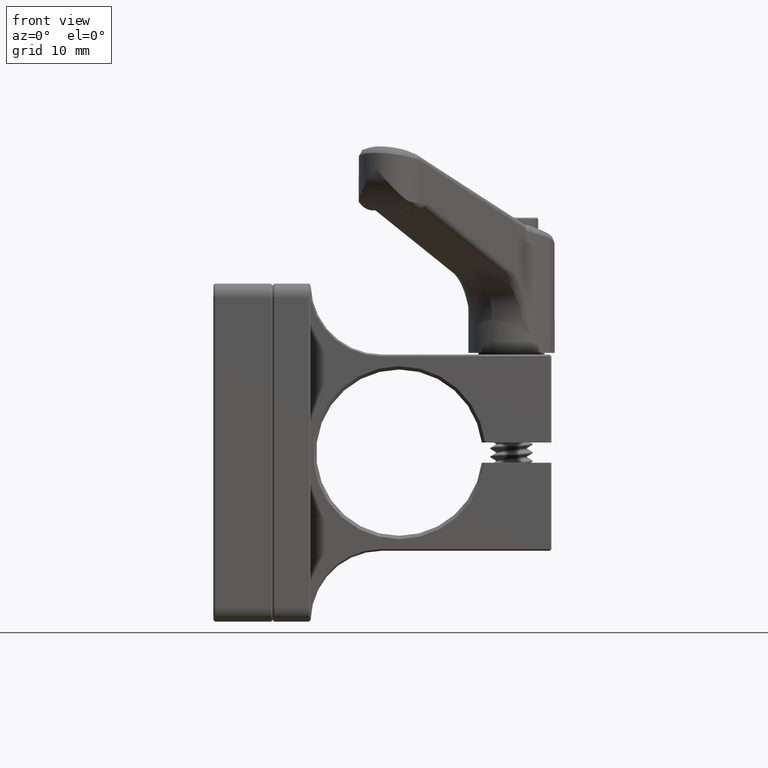
[diagram: clean part render]
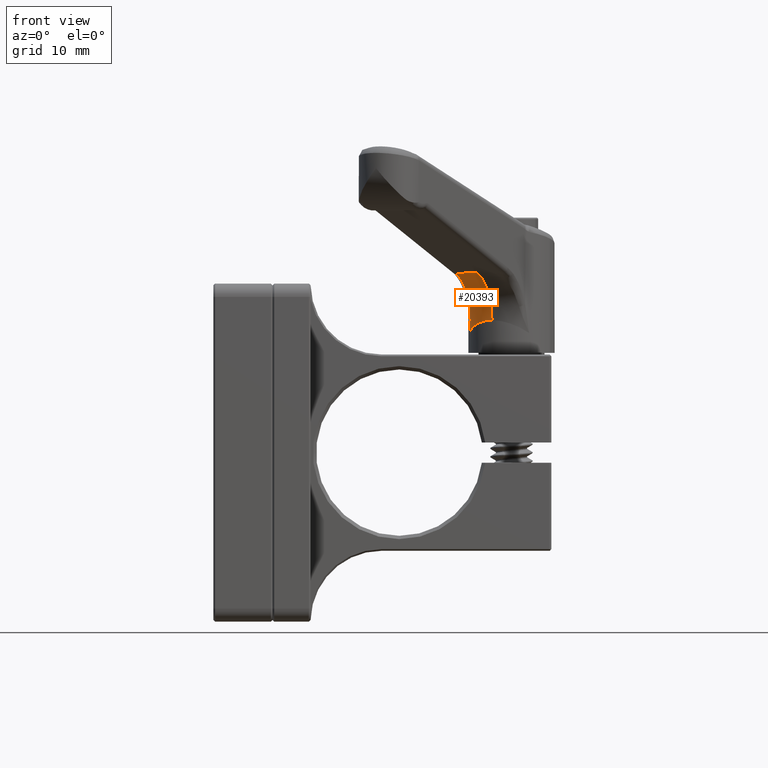
[diagram: same view with one face highlighted and labeled with its STEP entity id]
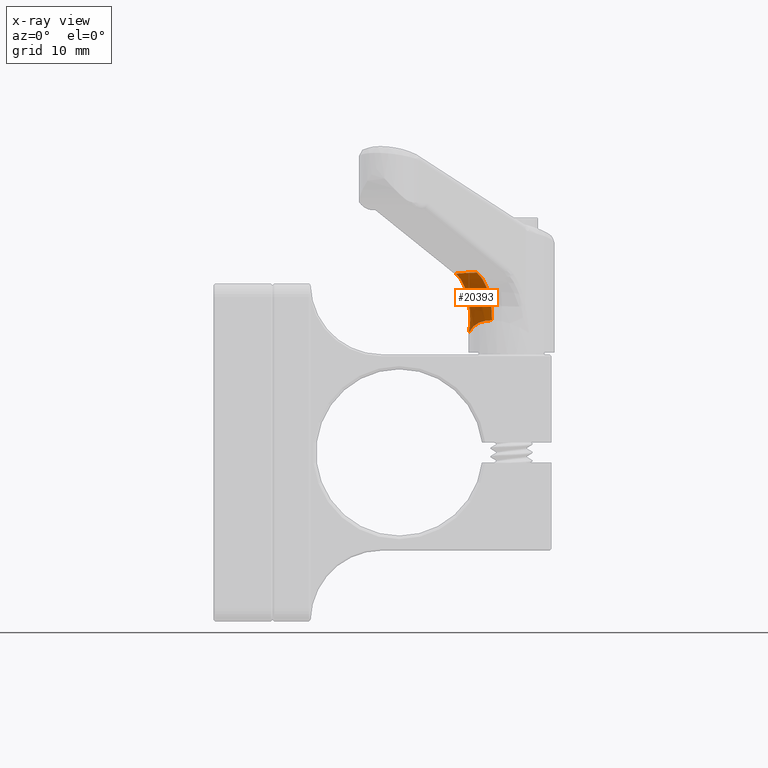
[diagram: x-ray of the same camera — body ghosted, the highlighted face saturated]
A machine part, front view. The second image highlights one B-rep face of the part: STEP entity #20393.
The next image is the same camera in x-ray: the body ghosted, the highlighted face saturated — about 0% of this face is hidden behind the body in this view.
In plain terms, the highlighted face is a freeform B-spline surface patch.
Its self-contained STEP definition (entity closure, byte-faithful):
#89 = CARTESIAN_POINT ( 'NONE',  ( 4.298144613204116560, -4.854698607468743710, 10.68286075880720531 ) ) ;
#1149 = CARTESIAN_POINT ( 'NONE',  ( 7.004447458432853324, -10.36694390747988770, 17.45572516152834552 ) ) ;
#1253 = CARTESIAN_POINT ( 'NONE',  ( 5.788525028637442560, -3.056373909444008774, 17.01316558990497896 ) ) ;
#1260 = CARTESIAN_POINT ( 'NONE',  ( 14.09698990032059029, -1.244997936205314474E-15, 11.92817561723325959 ) ) ;
#1394 = B_SPLINE_CURVE_WITH_KNOTS ( 'NONE', 3,
 ( #14990, #16520, #1616, #9548, #89, #6269 ),
 .UNSPECIFIED., .F., .F.,
 ( 4, 2, 4 ),
 ( 0.000000000000000000, 0.002193701320113213438, 0.004387402640226426877 ),
 .UNSPECIFIED. ) ;
#1473 = CARTESIAN_POINT ( 'NONE',  ( 6.206603743541818652, -1.914286068074581904, 11.71397583034823242 ) ) ;
#1488 = EDGE_CURVE ( 'NONE', #13584, #14622, #13413, .T. ) ;
#1616 = CARTESIAN_POINT ( 'NONE',  ( 5.083312465684488579, -4.367952821749421233, 12.67775128575780030 ) ) ;
#1840 = CARTESIAN_POINT ( 'NONE',  ( 7.426459771875473237, -3.956052960930946494, 16.53479511854423833 ) ) ;
#1916 = CARTESIAN_POINT ( 'NONE',  ( 11.49079986247256180, -1.014828145248320499E-15, 19.08862389702758122 ) ) ;
#2664 = CARTESIAN_POINT ( 'NONE',  ( 6.477000000000002977, -5.720264886206975028E-16, 11.92817561723325959 ) ) ;
#2976 = CARTESIAN_POINT ( 'NONE',  ( 10.90229078475497637, -4.166384339658841363, 18.87442411014290400 ) ) ;
#3013 = CARTESIAN_POINT ( 'NONE',  ( 6.305448146980277002, -4.085145671028524994, 15.06850985374742358 ) ) ;
#3087 = CARTESIAN_POINT ( 'NONE',  ( 2.722826267031603464, -6.112302168048227458, 15.89734249345473671 ) ) ;
#3095 = CARTESIAN_POINT ( 'NONE',  ( 11.49079986247256002, -1.267848442887159255, 19.08862389702758122 ) ) ;
#3127 = VERTEX_POINT ( 'NONE', #20230 ) ;
#3200 = CARTESIAN_POINT ( 'NONE',  ( 4.036670436264945927, -5.065256241196942177, 9.995019887464167141 ) ) ;
#3289 = CARTESIAN_POINT ( 'NONE',  ( 11.49079986247256180, -1.014828145248320499E-15, 19.08862389702758122 ) ) ;
#3308 = CARTESIAN_POINT ( 'NONE',  ( 11.37190879933176291, -2.109636342698538503, 19.04535108892405759 ) ) ;
#3578 = ORIENTED_EDGE ( 'NONE', *, *, #13543, .T. ) ;
#3932 = ORIENTED_EDGE ( 'NONE', *, *, #16376, .T. ) ;
#4025 = CARTESIAN_POINT ( 'NONE',  ( 10.98383799743360534, -3.746500000000000163, 18.90410486824530523 ) ) ;
#4255 = EDGE_LOOP ( 'NONE', ( #8099, #3578, #10616, #3932, #10260 ) ) ;
#4496 = CARTESIAN_POINT ( 'NONE',  ( 7.755216011648375485, -9.616604248795525223, 17.72898256772192482 ) ) ;
#4609 = CARTESIAN_POINT ( 'NONE',  ( 3.797705489222217068, -5.470472089237685687, 16.28856653576302094 ) ) ;
#4712 = CARTESIAN_POINT ( 'NONE',  ( 4.415712219089121149, -4.763185292368903312, 10.29528539470757842 ) ) ;
#4825 = CARTESIAN_POINT ( 'NONE',  ( 5.365194271265947279, -3.660752874937621026, 11.04743653722037777 ) ) ;
#4862 = CARTESIAN_POINT ( 'NONE',  ( 5.697487802157477965, -4.180892984858724404, 13.99274371865273636 ) ) ;
#4936 = CARTESIAN_POINT ( 'NONE',  ( 11.49079986247256358, -1.014828145248320696E-15, 19.08862389702758477 ) ) ;
#6269 = CARTESIAN_POINT ( 'NONE',  ( 4.063739079108937169, -5.043565573770491639, 10.01646285270483183 ) ) ;
#6353 = CARTESIAN_POINT ( 'NONE',  ( 6.477000000000003865, -0.4846661515269006237, 11.92817561723143172 ) ) ;
#6491 = CARTESIAN_POINT ( 'NONE',  ( 9.849448626886720959, -3.793493735210977658, 18.41897639542090204 ) ) ;
#8061 = CIRCLE ( 'NONE', #18851, 7.619989900320586429 ) ;
#8099 = ORIENTED_EDGE ( 'NONE', *, *, #1488, .F. ) ;
#8196 = CARTESIAN_POINT ( 'NONE',  ( 6.422374337258572652, -0.9692930681142238880, 11.88490280913009123 ) ) ;
#8234 = CARTESIAN_POINT ( 'NONE',  ( 9.070854343592342772, -3.836322508973101453, 17.92960230163784985 ) ) ;
#9522 = CARTESIAN_POINT ( 'NONE',  ( 6.477000000000003865, -5.720264886206975028E-16, 11.92817561723326136 ) ) ;
#9548 = CARTESIAN_POINT ( 'NONE',  ( 4.546301723004236628, -4.675186785282865465, 11.34939325492234552 ) ) ;
#9738 = CARTESIAN_POINT ( 'NONE',  ( 9.635913502239757733, -7.068855177056797778, 18.41350047395639322 ) ) ;
#9955 = CARTESIAN_POINT ( 'NONE',  ( 5.128254333668395226, -4.128697149169791025, 16.77284671038028208 ) ) ;
#10260 = ORIENTED_EDGE ( 'NONE', *, *, #19987, .T. ) ;
#10616 = ORIENTED_EDGE ( 'NONE', *, *, #13692, .F. ) ;
#11356 = FACE_OUTER_BOUND ( 'NONE', #4255, .T. ) ;
#11358 = CARTESIAN_POINT ( 'NONE',  ( 4.063739079108937169, -5.043565573770491639, 10.01646285270483183 ) ) ;
#11392 = CARTESIAN_POINT ( 'NONE',  ( 5.616385083518223631, -3.792556113924522965, 11.24642234847594047 ) ) ;
#11586 = CARTESIAN_POINT ( 'NONE',  ( 11.49079986246940344, -1.054860868164406273, 19.08862389702643014 ) ) ;
#11748 =( BOUNDED_CURVE ( )  B_SPLINE_CURVE ( 3, ( #16495, #19631, #3095, #1916 ),
 .UNSPECIFIED., .F., .T. ) 
 B_SPLINE_CURVE_WITH_KNOTS ( ( 4, 4 ),
 ( 6.014186942402299785, 6.283185307179586232 ),
 .UNSPECIFIED. ) 
 CURVE ( )  GEOMETRIC_REPRESENTATION_ITEM ( )  RATIONAL_B_SPLINE_CURVE ( ( 1.000000000000000000, 0.9939790747544796634, 0.9939790747544796634, 1.000000000000000000 ) ) 
 REPRESENTATION_ITEM ( '' )  );
#12886 = CARTESIAN_POINT ( 'NONE',  ( 6.045467922179074804, -2.374602868203998352, 11.58632887603365980 ) ) ;
#13147 = CARTESIAN_POINT ( 'NONE',  ( 8.819133323913565192, -3.851534095684130854, 17.75290826535510647 ) ) ;
#13413 =( BOUNDED_CURVE ( )  B_SPLINE_CURVE ( 3, ( #16294, #19881, #11392, #19658 ),
 .UNSPECIFIED., .F., .T. ) 
 B_SPLINE_CURVE_WITH_KNOTS ( ( 4, 4 ),
 ( 0.000000000000000000, 0.8925727990785855548 ),
 .UNSPECIFIED. ) 
 CURVE ( )  GEOMETRIC_REPRESENTATION_ITEM ( )  RATIONAL_B_SPLINE_CURVE ( ( 1.000000000000000000, 0.9347041185995071944, 0.9347041185995071944, 1.000000000000000000 ) ) 
 REPRESENTATION_ITEM ( '' )  );
#13473 = CARTESIAN_POINT ( 'NONE',  ( 8.095973493976625690, -3.901484175456348957, 17.16985117783277204 ) ) ;
#13543 = EDGE_CURVE ( 'NONE', #13584, #17403, #8061, .T. ) ;
#13584 = VERTEX_POINT ( 'NONE', #2664 ) ;
#13692 = EDGE_CURVE ( 'NONE', #17772, #17403, #11748, .T. ) ;
#13838 =( BOUNDED_SURFACE ( )  B_SPLINE_SURFACE ( 3, 2, ( 
 ( #9522, #18216, #4936 ),
 ( #6353, #21039, #11586 ),
 ( #8196, #17995, #3308 ),
 ( #1473, #21483, #2976 ),
 ( #12886, #1253, #19626 ),
 ( #16257, #9955, #9738 ),
 ( #4825, #18105, #14842 ),
 ( #21265, #4609, #4496 ),
 ( #4712, #16372, #1149 ),
 ( #3200, #3087, #14736 ) ),
 .UNSPECIFIED., .F., .F., .F. ) 
 B_SPLINE_SURFACE_WITH_KNOTS ( ( 4, 2, 2, 2, 4 ),
 ( 3, 3 ),
 ( 0.000000000000000000, 0.2244820589682640921, 0.4489641179365281842, 0.6734461769047922486, 0.8979282358730563685 ),
 ( 0.000000000000000000, 1.000000000000000000 ),
 .UNSPECIFIED. ) 
 GEOMETRIC_REPRESENTATION_ITEM ( )  RATIONAL_B_SPLINE_SURFACE ( (
 ( 1.000000000000000000, 0.8191520442890012355, 1.000000000000000000),
 ( 1.000000000000000000, 0.8191529000015345119, 1.000000000000000000),
 ( 1.000000000000000000, 0.8182730906652329050, 1.000000000000000000),
 ( 1.000000000000000000, 0.8147845923029042314, 1.000000000000000000),
 ( 1.000000000000000000, 0.8121750208582885211, 1.000000000000000000),
 ( 1.000000000000000000, 0.8053075829320837098, 1.000000000000000000),
 ( 1.000000000000000000, 0.8010496639748899694, 1.000000000000000000),
 ( 1.000000000000000000, 0.7910239998533928896, 1.000000000000000000),
 ( 1.000000000000000000, 0.7852571084551045466, 1.000000000000000000),
 ( 1.000000000000000000, 0.7788317300686768974, 1.000000000000000000) ) ) 
 REPRESENTATION_ITEM ( '' )  SURFACE ( )  );
#14622 = VERTEX_POINT ( 'NONE', #11358 ) ;
#14736 = CARTESIAN_POINT ( 'NONE',  ( 6.179498146643192413, -11.02437333251337392, 17.15546816725848700 ) ) ;
#14842 = CARTESIAN_POINT ( 'NONE',  ( 9.070989127705496813, -7.967515254834604654, 18.20788481701445249 ) ) ;
#14978 = B_SPLINE_CURVE_WITH_KNOTS ( 'NONE', 3,
 ( #16299, #21311, #6491, #8234, #13147, #17921, #13473, #1840, #18248, #19780, #3013, #19998, #16409, #4862 ),
 .UNSPECIFIED., .F., .F.,
 ( 4, 2, 2, 2, 2, 2, 4 ),
 ( 1.734723475976807094E-18, 0.001839640835902537101, 0.002759461253853809880, 0.003679281671805082442, 0.005518922507707637974, 0.006438742925658914006, 0.007358563343610189170 ),
 .UNSPECIFIED. ) ;
#14990 = CARTESIAN_POINT ( 'NONE',  ( 5.697487802157477965, -4.180892984858724404, 13.99274371865273636 ) ) ;
#16257 = CARTESIAN_POINT ( 'NONE',  ( 5.624754304984221243, -3.247854705546463716, 11.25305219416084768 ) ) ;
#16294 = CARTESIAN_POINT ( 'NONE',  ( 6.477000000000002977, -5.720264886206975028E-16, 11.92817561723325959 ) ) ;
#16299 = CARTESIAN_POINT ( 'NONE',  ( 10.98383799743360534, -3.746500000000000163, 18.90410486824530523 ) ) ;
#16372 = CARTESIAN_POINT ( 'NONE',  ( 3.275696531637752873, -5.831147287949817404, 16.09857081319773542 ) ) ;
#16376 = EDGE_CURVE ( 'NONE', #17772, #3127, #14978, .T. ) ;
#16409 = CARTESIAN_POINT ( 'NONE',  ( 5.835423241292624574, -4.156397605413264529, 14.26979501156943719 ) ) ;
#16495 = CARTESIAN_POINT ( 'NONE',  ( 10.98383799743360534, -3.746500000000000163, 18.90410486824530523 ) ) ;
#16520 = CARTESIAN_POINT ( 'NONE',  ( 5.371398609759624243, -4.238801804745273571, 13.33777474964492527 ) ) ;
#17403 = VERTEX_POINT ( 'NONE', #3289 ) ;
#17571 = DIRECTION ( 'NONE',  ( -1.000000000000000000, 8.831657999393200583E-17, 0.000000000000000000 ) ) ;
#17772 = VERTEX_POINT ( 'NONE', #4025 ) ;
#17921 = CARTESIAN_POINT ( 'NONE',  ( 8.331143392946778192, -3.884141875212688166, 17.37270470745631101 ) ) ;
#17995 = CARTESIAN_POINT ( 'NONE',  ( 6.389051213569765686, -1.261173076137554805, 17.23173924611758778 ) ) ;
#18105 = CARTESIAN_POINT ( 'NONE',  ( 4.722505149829614446, -4.619162878997782329, 16.62516608488433079 ) ) ;
#18216 = CARTESIAN_POINT ( 'NONE',  ( 6.477000000000006530, -5.720264886206981931E-16, 17.26374998651941439 ) ) ;
#18248 = CARTESIAN_POINT ( 'NONE',  ( 7.023170481757301964, -3.996186816438427769, 16.07282919652400111 ) ) ;
#18851 = AXIS2_PLACEMENT_3D ( 'NONE', #1260, #19197, #17571 ) ;
#19197 = DIRECTION ( 'NONE',  ( 8.831657999393200583E-17, 1.000000000000000000, -0.000000000000000000 ) ) ;
#19626 = CARTESIAN_POINT ( 'NONE',  ( 10.55158366010923210, -5.168249598632755237, 18.74677715582675219 ) ) ;
#19631 = CARTESIAN_POINT ( 'NONE',  ( 11.32078895113817119, -2.524246454728411138, 19.02674498580138618 ) ) ;
#19658 = CARTESIAN_POINT ( 'NONE',  ( 4.063739079108937169, -5.043565573770491639, 10.01646285270483183 ) ) ;
#19780 = CARTESIAN_POINT ( 'NONE',  ( 6.477609271350484477, -4.062156529019586237, 15.32670685555209467 ) ) ;
#19881 = CARTESIAN_POINT ( 'NONE',  ( 6.477000000000004754, -1.993924342504561409, 11.92817561723326136 ) ) ;
#19987 = EDGE_CURVE ( 'NONE', #3127, #14622, #1394, .T. ) ;
#19998 = CARTESIAN_POINT ( 'NONE',  ( 5.984609603145182533, -4.132239566160249566, 14.54034456995575653 ) ) ;
#20230 = CARTESIAN_POINT ( 'NONE',  ( 5.697487802157477965, -4.180892984858724404, 13.99274371865273636 ) ) ;
#20393 = ADVANCED_FACE ( 'NONE', ( #11356 ), #13838, .F. ) ;
#21039 = CARTESIAN_POINT ( 'NONE',  ( 6.476999999995887158, -0.6299977840535345708, 17.26374998651757764 ) ) ;
#21265 = CARTESIAN_POINT ( 'NONE',  ( 4.760649433469358094, -4.418442955544053419, 10.56853428792735805 ) ) ;
#21311 = CARTESIAN_POINT ( 'NONE',  ( 10.39948386430040372, -3.768662950284517255, 18.69141735751436428 ) ) ;
#21483 = CARTESIAN_POINT ( 'NONE',  ( 6.045497720131043806, -2.473306823386976383, 17.10669600063045692 ) ) ;